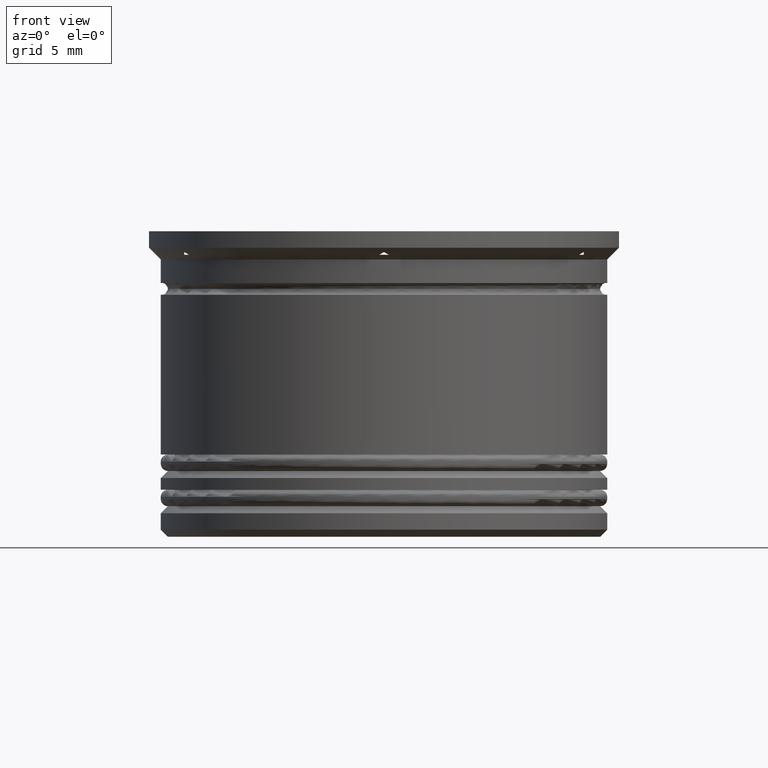
[diagram: clean part render]
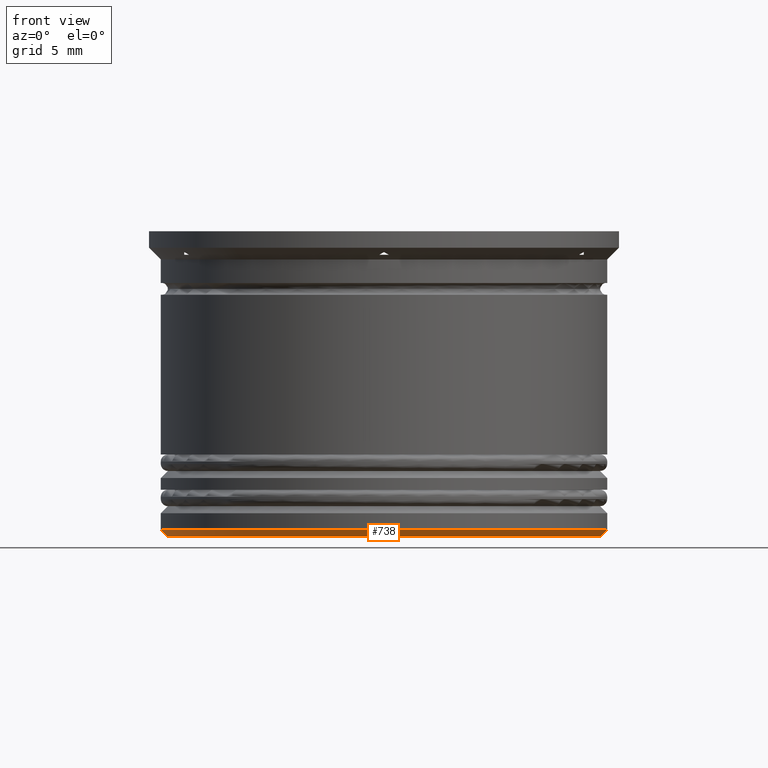
[diagram: same view with one face highlighted and labeled with its STEP entity id]
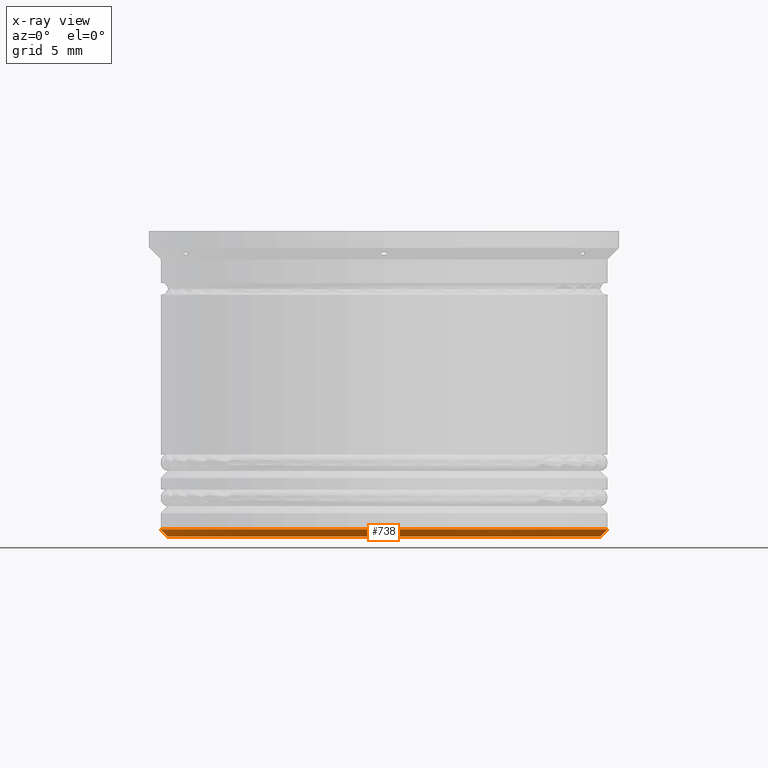
[diagram: x-ray of the same camera — body ghosted, the highlighted face saturated]
A machine part, front view. The second image highlights one B-rep face of the part: STEP entity #738.
The next image is the same camera in x-ray: the body ghosted, the highlighted face saturated — about 0% of this face is hidden behind the body in this view.
In plain terms, the highlighted conical surface has half-angle 45 deg.
Its self-contained STEP definition (entity closure, byte-faithful):
#172 = CARTESIAN_POINT ( 'NONE',  ( 9.500000000000001776, 0.000000000000000000, -12.70000000000000639 ) ) ;
#183 = LINE ( 'NONE', #172, #192 ) ;
#192 = VECTOR ( 'NONE', #844, 1000.000000000000114 ) ;
#203 = CARTESIAN_POINT ( 'NONE',  ( 0.000000000000000000, 0.000000000000000000, -12.70000000000000639 ) ) ;
#210 = ORIENTED_EDGE ( 'NONE', *, *, #960, .T. ) ;
#251 = DIRECTION ( 'NONE',  ( -0.7071067811865474617, 8.659560562354932858E-17, 0.7071067811865474617 ) ) ;
#396 = AXIS2_PLACEMENT_3D ( 'NONE', #203, #2034, #521 ) ;
#444 = CARTESIAN_POINT ( 'NONE',  ( -9.500000000000001776, 1.163414459189985682E-15, -12.70000000000000639 ) ) ;
#486 = DIRECTION ( 'NONE',  ( -1.000000000000000000, 0.000000000000000000, 0.000000000000000000 ) ) ;
#495 = EDGE_CURVE ( 'NONE', #1584, #1882, #1304, .T. ) ;
#521 = DIRECTION ( 'NONE',  ( 1.000000000000000000, 0.000000000000000000, 0.000000000000000000 ) ) ;
#549 = CARTESIAN_POINT ( 'NONE',  ( 9.500000000000001776, 0.000000000000000000, -12.70000000000000639 ) ) ;
#677 = VERTEX_POINT ( 'NONE', #713 ) ;
#683 = ORIENTED_EDGE ( 'NONE', *, *, #1781, .F. ) ;
#685 = DIRECTION ( 'NONE',  ( -0.000000000000000000, -0.000000000000000000, 1.000000000000000000 ) ) ;
#709 = ORIENTED_EDGE ( 'NONE', *, *, #495, .F. ) ;
#713 = CARTESIAN_POINT ( 'NONE',  ( 9.200000000000006395, 0.000000000000000000, -13.00000000000000178 ) ) ;
#738 = ADVANCED_FACE ( 'NONE', ( #1542 ), #2043, .T. ) ;
#788 = AXIS2_PLACEMENT_3D ( 'NONE', #1436, #1939, #2103 ) ;
#823 = CARTESIAN_POINT ( 'NONE',  ( -9.200000000000006395, 1.145044757202775844E-15, -13.00000000000000178 ) ) ;
#844 = DIRECTION ( 'NONE',  ( 0.7071067811865474617, 0.000000000000000000, 0.7071067811865474617 ) ) ;
#940 = EDGE_CURVE ( 'NONE', #1882, #1057, #972, .T. ) ;
#960 = EDGE_CURVE ( 'NONE', #677, #1057, #183, .T. ) ;
#972 = CIRCLE ( 'NONE', #1495, 9.500000000000001776 ) ;
#1057 = VERTEX_POINT ( 'NONE', #549 ) ;
#1151 = CARTESIAN_POINT ( 'NONE',  ( 0.000000000000000000, 0.000000000000000000, -12.70000000000000639 ) ) ;
#1175 = CARTESIAN_POINT ( 'NONE',  ( -9.500000000000001776, 1.163414459189985682E-15, -12.70000000000000639 ) ) ;
#1236 = ORIENTED_EDGE ( 'NONE', *, *, #940, .F. ) ;
#1304 = LINE ( 'NONE', #444, #1317 ) ;
#1317 = VECTOR ( 'NONE', #251, 1000.000000000000114 ) ;
#1436 = CARTESIAN_POINT ( 'NONE',  ( 0.000000000000000000, 0.000000000000000000, -13.00000000000000178 ) ) ;
#1495 = AXIS2_PLACEMENT_3D ( 'NONE', #1151, #685, #486 ) ;
#1530 = CIRCLE ( 'NONE', #788, 9.200000000000006395 ) ;
#1542 = FACE_OUTER_BOUND ( 'NONE', #1612, .T. ) ;
#1584 = VERTEX_POINT ( 'NONE', #823 ) ;
#1612 = EDGE_LOOP ( 'NONE', ( #709, #683, #210, #1236 ) ) ;
#1781 = EDGE_CURVE ( 'NONE', #677, #1584, #1530, .T. ) ;
#1882 = VERTEX_POINT ( 'NONE', #1175 ) ;
#1939 = DIRECTION ( 'NONE',  ( 0.000000000000000000, 0.000000000000000000, -1.000000000000000000 ) ) ;
#2034 = DIRECTION ( 'NONE',  ( -0.000000000000000000, -0.000000000000000000, 1.000000000000000000 ) ) ;
#2043 = CONICAL_SURFACE ( 'NONE', #396, 9.500000000000001776, 0.7853981633974482790 ) ;
#2103 = DIRECTION ( 'NONE',  ( -1.000000000000000000, 0.000000000000000000, 0.000000000000000000 ) ) ;